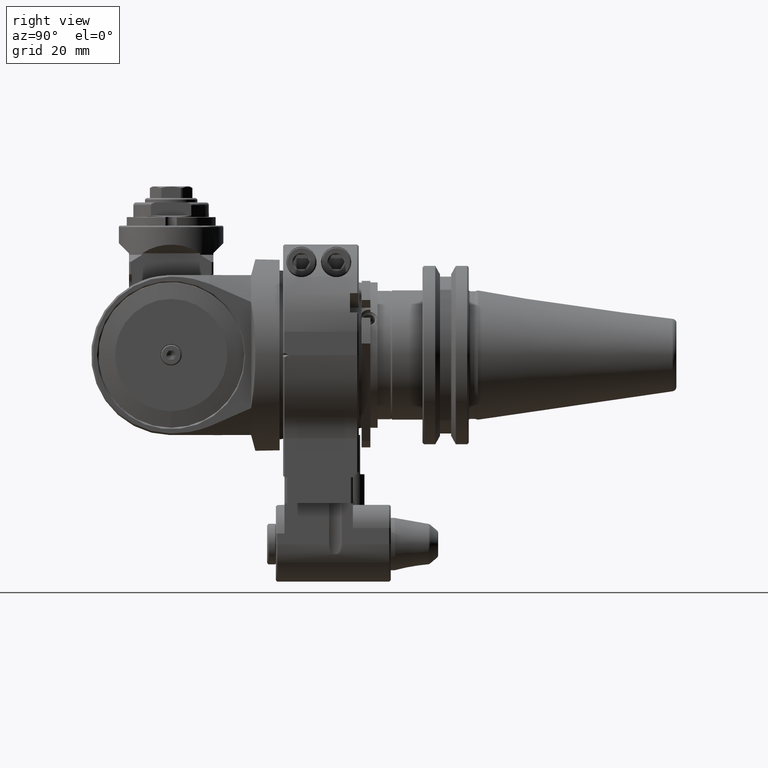
[diagram: clean part render]
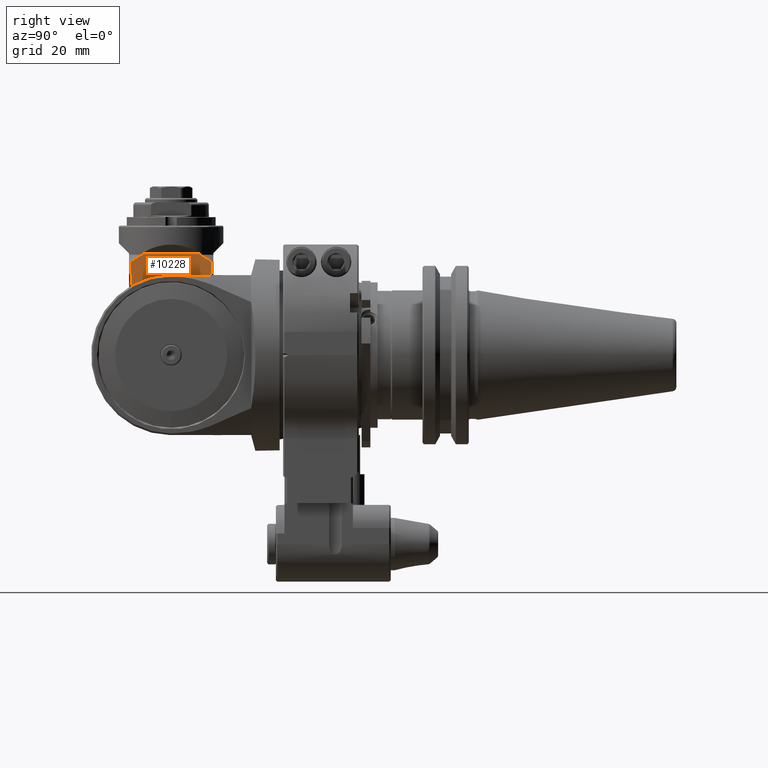
[diagram: same view with one face highlighted and labeled with its STEP entity id]
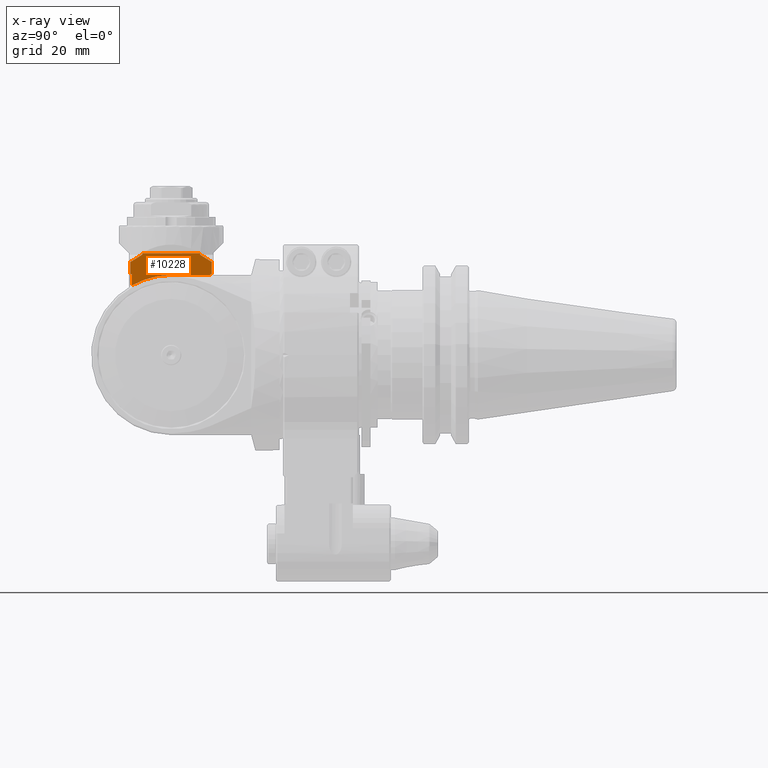
[diagram: x-ray of the same camera — body ghosted, the highlighted face saturated]
A machine part, right view. The second image highlights one B-rep face of the part: STEP entity #10228.
The next image is the same camera in x-ray: the body ghosted, the highlighted face saturated — about 0% of this face is hidden behind the body in this view.
In plain terms, the highlighted planar face has unit normal (1, 0, 0).
Its self-contained STEP definition (entity closure, byte-faithful):
#55=(
BOUNDED_CURVE()
B_SPLINE_CURVE(2,(#17421,#17422,#17423),.UNSPECIFIED.,.F.,.F.)
B_SPLINE_CURVE_WITH_KNOTS((3,3),(1.24378029743834,1.80680069053097),
 .UNSPECIFIED.)
CURVE()
GEOMETRIC_REPRESENTATION_ITEM()
RATIONAL_B_SPLINE_CURVE((1.04604934773069,1.04391034656454,1.03039890469907))
REPRESENTATION_ITEM('')
);
#56=(
BOUNDED_CURVE()
B_SPLINE_CURVE(2,(#17431,#17432,#17433),.UNSPECIFIED.,.F.,.F.)
B_SPLINE_CURVE_WITH_KNOTS((3,3),(0.4689669727789,1.03198736587092),
 .UNSPECIFIED.)
CURVE()
GEOMETRIC_REPRESENTATION_ITEM()
RATIONAL_B_SPLINE_CURVE((1.03039890469908,1.04391034656453,1.04604934773069))
REPRESENTATION_ITEM('')
);
#721=LINE('',#17036,#1557);
#760=LINE('',#17415,#1596);
#761=LINE('',#17417,#1597);
#762=LINE('',#17419,#1598);
#763=LINE('',#17425,#1599);
#764=LINE('',#17427,#1600);
#765=LINE('',#17429,#1601);
#766=LINE('',#17435,#1602);
#767=LINE('',#17437,#1603);
#768=LINE('',#17438,#1604);
#1557=VECTOR('',#13005,13.5);
#1596=VECTOR('',#13168,0.300409169886);
#1597=VECTOR('',#13169,10.);
#1598=VECTOR('',#13170,4.201257496781);
#1599=VECTOR('',#13171,0.5);
#1600=VECTOR('',#13172,19.89974874213);
#1601=VECTOR('',#13173,0.5);
#1602=VECTOR('',#13174,4.201257496787);
#1603=VECTOR('',#13175,10.);
#1604=VECTOR('',#13176,3.842112068464);
#2534=FACE_OUTER_BOUND('',#3194,.T.);
#3194=EDGE_LOOP('',(#7967,#7968,#7969,#7970,#7971,#7972,#7973,#7974,#7975,
#7976,#7977,#7978,#7979));
#3777=CIRCLE('',#11101,27.5);
#4484=VERTEX_POINT('',#17033);
#4485=VERTEX_POINT('',#17035);
#4537=VERTEX_POINT('',#17410);
#4538=VERTEX_POINT('',#17414);
#4539=VERTEX_POINT('',#17416);
#4540=VERTEX_POINT('',#17418);
#4541=VERTEX_POINT('',#17420);
#4542=VERTEX_POINT('',#17424);
#4543=VERTEX_POINT('',#17426);
#4544=VERTEX_POINT('',#17428);
#4545=VERTEX_POINT('',#17430);
#4546=VERTEX_POINT('',#17434);
#4547=VERTEX_POINT('',#17436);
#5684=EDGE_CURVE('',#4485,#4484,#721,.T.);
#5769=EDGE_CURVE('',#4485,#4537,#3777,.T.);
#5771=EDGE_CURVE('',#4538,#4484,#760,.T.);
#5772=EDGE_CURVE('',#4539,#4538,#761,.T.);
#5773=EDGE_CURVE('',#4540,#4539,#762,.T.);
#5774=EDGE_CURVE('',#4540,#4541,#55,.T.);
#5775=EDGE_CURVE('',#4542,#4541,#763,.T.);
#5776=EDGE_CURVE('',#4543,#4542,#764,.T.);
#5777=EDGE_CURVE('',#4544,#4543,#765,.T.);
#5778=EDGE_CURVE('',#4544,#4545,#56,.T.);
#5779=EDGE_CURVE('',#4546,#4545,#766,.T.);
#5780=EDGE_CURVE('',#4547,#4546,#767,.T.);
#5781=EDGE_CURVE('',#4537,#4547,#768,.T.);
#7967=ORIENTED_EDGE('',*,*,#5769,.F.);
#7968=ORIENTED_EDGE('',*,*,#5684,.T.);
#7969=ORIENTED_EDGE('',*,*,#5771,.F.);
#7970=ORIENTED_EDGE('',*,*,#5772,.F.);
#7971=ORIENTED_EDGE('',*,*,#5773,.F.);
#7972=ORIENTED_EDGE('',*,*,#5774,.T.);
#7973=ORIENTED_EDGE('',*,*,#5775,.F.);
#7974=ORIENTED_EDGE('',*,*,#5776,.F.);
#7975=ORIENTED_EDGE('',*,*,#5777,.F.);
#7976=ORIENTED_EDGE('',*,*,#5778,.T.);
#7977=ORIENTED_EDGE('',*,*,#5779,.F.);
#7978=ORIENTED_EDGE('',*,*,#5780,.F.);
#7979=ORIENTED_EDGE('',*,*,#5781,.F.);
#9771=PLANE('',#11103);
#10228=ADVANCED_FACE('',(#2534),#9771,.T.);
#11101=AXIS2_PLACEMENT_3D('',#17411,#13162,#13163);
#11103=AXIS2_PLACEMENT_3D('',#17413,#13166,#13167);
#13005=DIRECTION('',(0.,1.,0.));
#13162=DIRECTION('center_axis',(1.,0.,0.));
#13163=DIRECTION('ref_axis',(0.,0.,1.));
#13166=DIRECTION('center_axis',(1.,0.,0.));
#13167=DIRECTION('ref_axis',(0.,0.,1.));
#13168=DIRECTION('',(0.,2.365249822533E-14,-1.));
#13169=DIRECTION('',(0.,-1.,0.));
#13170=DIRECTION('',(0.,0.,-1.));
#13171=DIRECTION('',(1.42108547152E-14,0.,-1.));
#13172=DIRECTION('',(0.,1.,0.));
#13173=DIRECTION('',(-2.84217094304E-14,0.,1.));
#13174=DIRECTION('',(-2.063339698389E-13,1.944951355039E-13,1.));
#13175=DIRECTION('',(0.,-1.,0.));
#13176=DIRECTION('',(0.,0.,1.));
#17033=CARTESIAN_POINT('',(15.,-25.,27.5));
#17035=CARTESIAN_POINT('',(15.,-38.5,27.5));
#17036=CARTESIAN_POINT('',(15.,-38.5,27.5));
#17410=CARTESIAN_POINT('',(15.,-52.,23.95829710142));
#17411=CARTESIAN_POINT('Origin',(15.,-38.5,0.));
#17413=CARTESIAN_POINT('Origin',(15.,-38.5,-97.));
#17414=CARTESIAN_POINT('',(15.,-25.,27.80040916989));
#17415=CARTESIAN_POINT('',(15.,-25.,27.80040916989));
#17416=CARTESIAN_POINT('',(15.0000000000003,-24.5268113875194,27.8004091692025));
#17417=CARTESIAN_POINT('',(15.,-31.,27.80040916989));
#17418=CARTESIAN_POINT('',(15.,-24.52681138752,32.));
#17419=CARTESIAN_POINT('',(15.,-24.52681138752,32.));
#17420=CARTESIAN_POINT('',(15.,-28.55012562893,34.5));
#17421=CARTESIAN_POINT('Ctrl Pts',(15.,-24.5268113875193,32.000000000001));
#17422=CARTESIAN_POINT('Ctrl Pts',(15.,-26.6690955939851,33.4602215257808));
#17423=CARTESIAN_POINT('Ctrl Pts',(15.,-28.5501256289309,34.4999999999984));
#17424=CARTESIAN_POINT('',(15.,-28.55012562893,35.));
#17425=CARTESIAN_POINT('',(15.,-28.55012562893,35.));
#17426=CARTESIAN_POINT('',(15.,-48.44987437107,35.));
#17427=CARTESIAN_POINT('',(15.,-48.44987437107,35.));
#17428=CARTESIAN_POINT('',(15.,-48.44987437107,34.5));
#17429=CARTESIAN_POINT('',(15.,-48.44987437107,34.5));
#17430=CARTESIAN_POINT('',(15.,-52.47318861248,32.00000000001));
#17431=CARTESIAN_POINT('Ctrl Pts',(15.,-48.4498743710691,34.4999999999984));
#17432=CARTESIAN_POINT('Ctrl Pts',(15.,-50.3309044060129,33.4602215257819));
#17433=CARTESIAN_POINT('Ctrl Pts',(15.,-52.473188612476,32.0000000000041));
#17434=CARTESIAN_POINT('',(15.0000000000003,-52.4731886124806,27.8004091692025));
#17435=CARTESIAN_POINT('',(15.,-52.47318861248,27.79874250322));
#17436=CARTESIAN_POINT('',(15.,-52.,27.80040916989));
#17437=CARTESIAN_POINT('',(15.,-45.5,27.80040916989));
#17438=CARTESIAN_POINT('',(15.,-52.,23.95829710142));